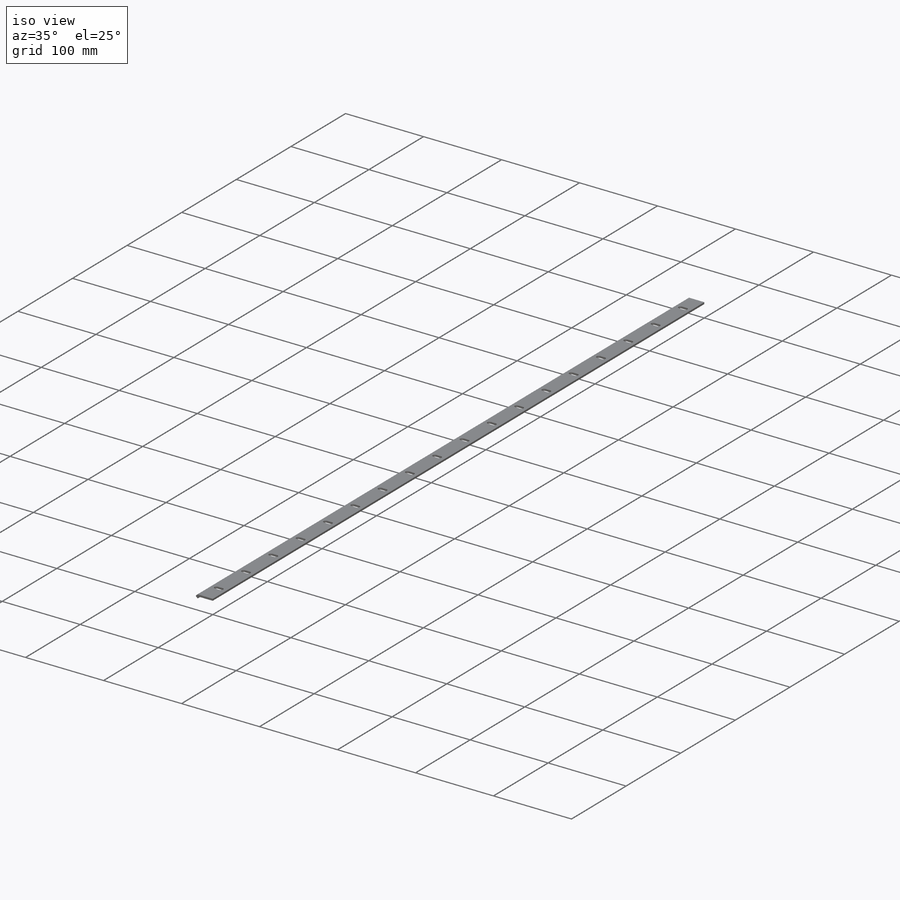
[diagram: iso view]
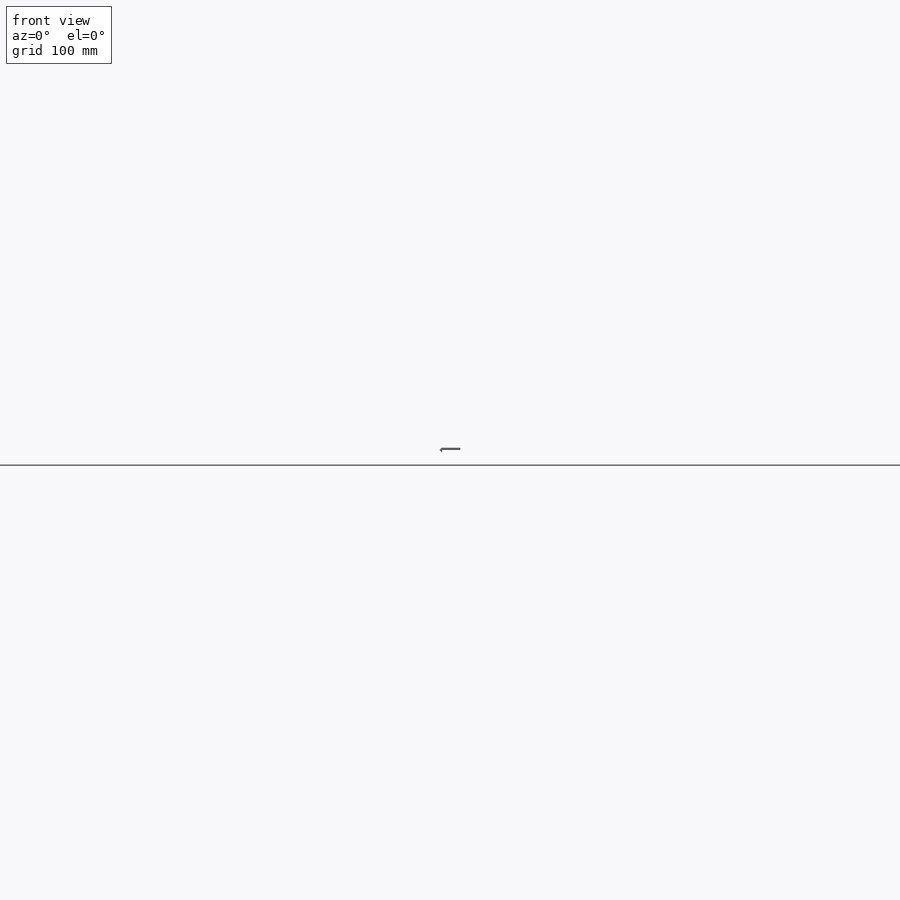
[diagram: front view]
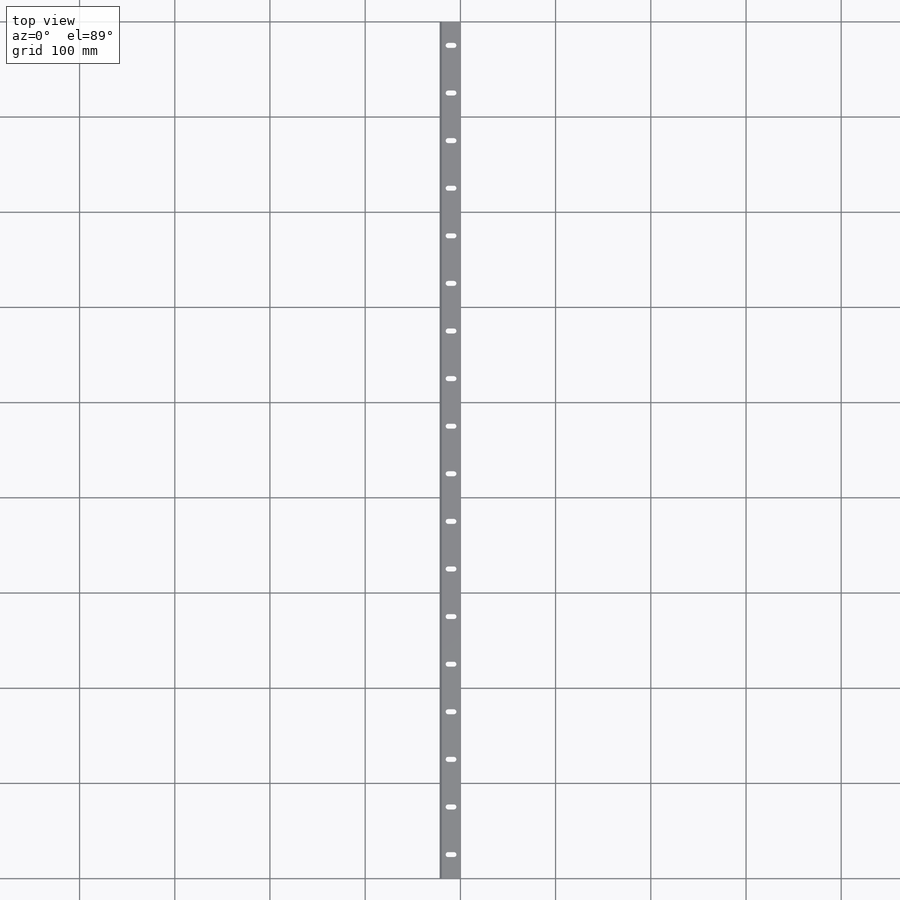
[diagram: top view]
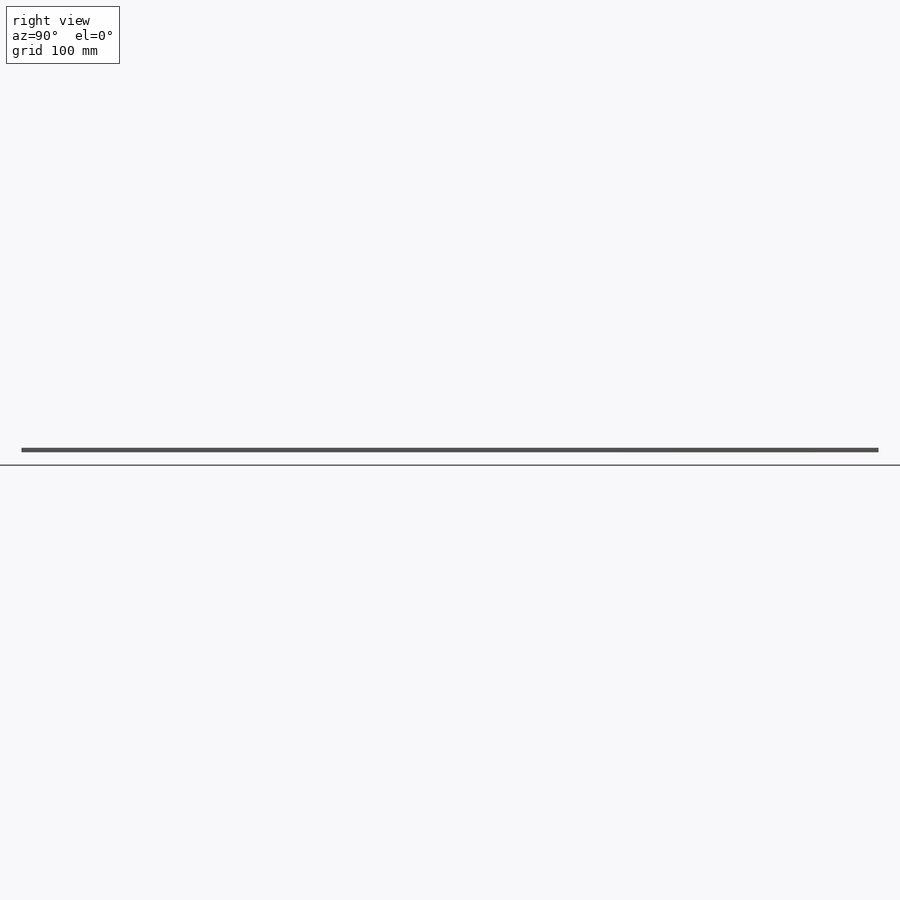
[diagram: right view]
SOLIDWORKS PART (.sldprt)
format: sldprt  version: not decoded by parser v0  size: 403,968 bytes
history: native  units: mm
features: sketch x2, material x1, extrude x1, fillet x1, cut_extrude x1, pattern_linear x1 (+13 scaffold rows collapsed)
feature tree (20):
  scaffold x13  (default folders/planes/origin — collapsed)
  material  "6061 Alloy"
  sketch  "Sketch1"  dims[c1.D1=2.375mm c1.D2=19.5291mm c1.D3=2.375mm c1.D4=2.9679mm c1.D5=19.5291mm c2.D5=135.0deg c3.D5=1.7821mm c4.D5=~149.016942deg c5.D5=2.7458mm c6.D5=~120.983058deg c7.D5=2.9679mm c8.D5=90.0deg c9.D5=1.7821mm c10.D5=135.0deg c10.D4=~3.491235mm c11.D4=135.0deg c11.D5=2.375mm c11.D1=4.75mm c11.D3=2.6979mm]
  extrude  "Boss-Extrude1"  Depth=850mm
  fillet  "Fillet1"  Radius=0.2mm
  sketch  "Sketch2"  dims[D2=5.25mm D1=6.0mm D3=25.0mm]
  cut_extrude  "Cut-Extrude1"  [1 undecoded]
  pattern_linear  "LPattern1"  Count1=17 Count2=1 Spacing1=50mm Spacing2=10mm
decode coverage: 5 of 6 modeling features carry decoded parameters
note: ~ marks probable driven/reference dimensions
note: 1 parameter value undecoded
note: suppression state not decoded; provenance and decode notes live in map.json
